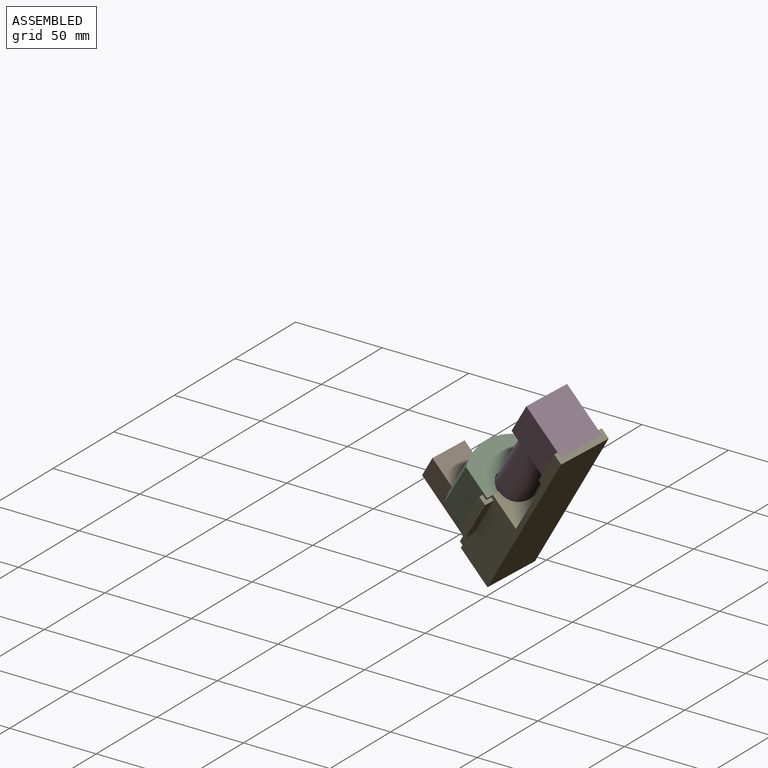
[diagram: assembled view]
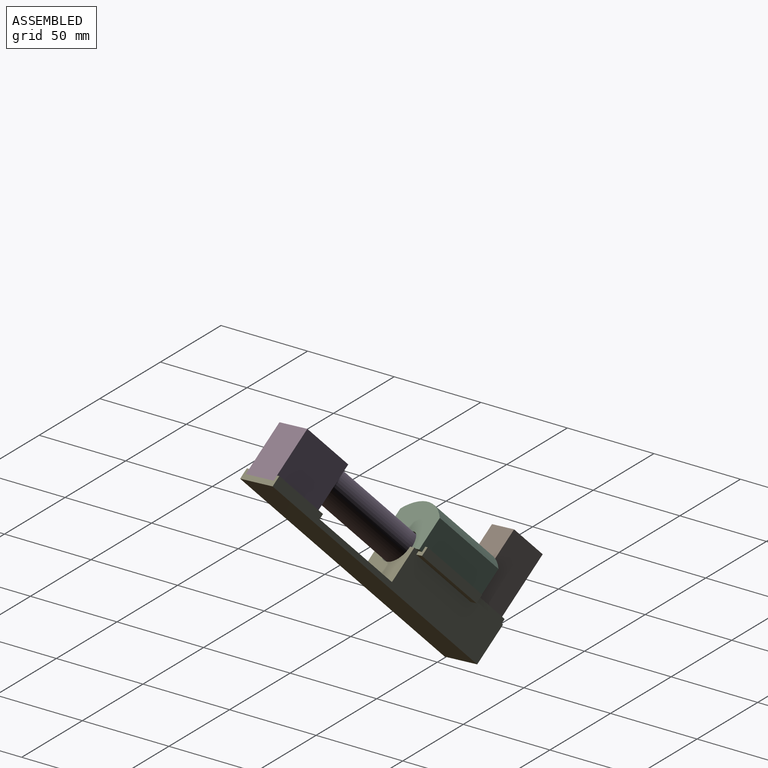
[diagram: assembled view, second angle]
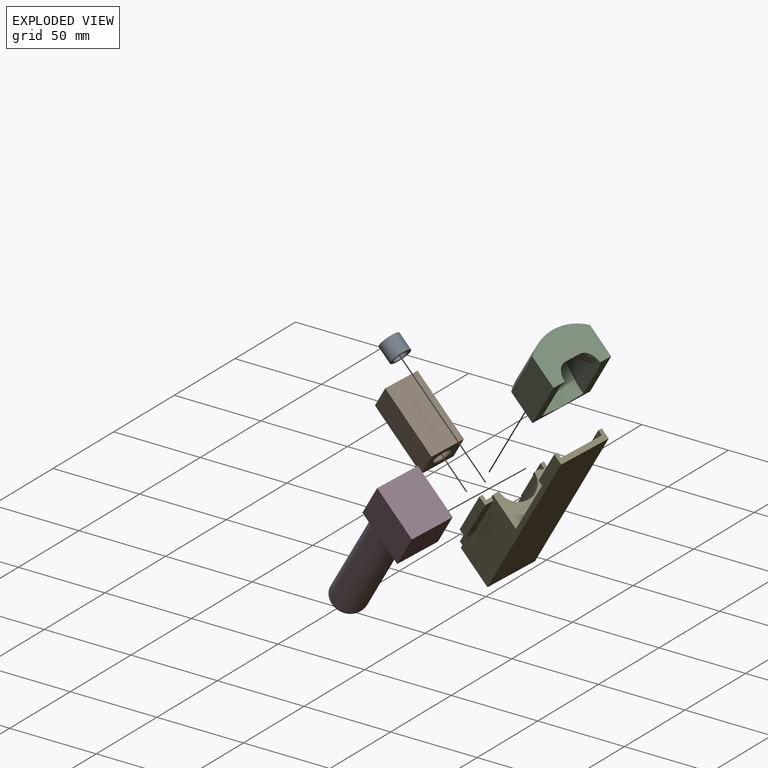
[diagram: exploded view]
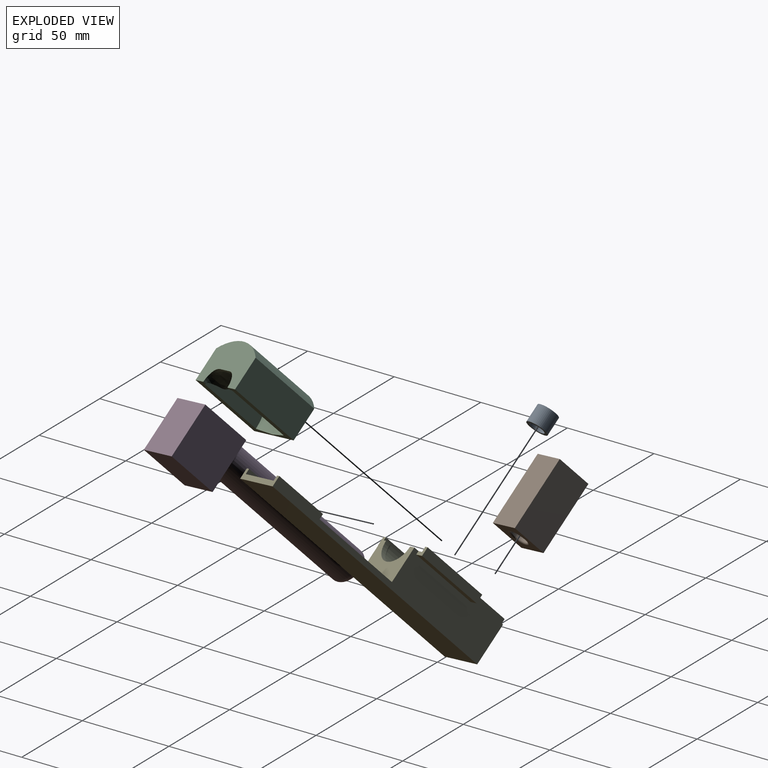
[diagram: exploded view, second angle]
ASSEMBLY  parts=5 mates=11
PART A: 6 faces, bbox 12x12x10 mm
  f0: cylinder r=6mm len=12mm, axis (0,0,-1), area 377mm2, adj f1,f2
  f1: plane 12x12mm, normal (0,0,1), area 111.3mm2, adj f0,f5
  f2: plane 12x12mm, normal (0,0,-1), area 56.4mm2, adj f0,f3
  f3: cylinder r=4.25mm len=8.5mm, axis (0,0,-1), area 213.6mm2, adj f2,f4
  f4: plane 8.5x8.5mm, normal (0,0,-1), area 55mm2, adj f3,f5
  f5: cylinder r=0.75mm len=2mm, axis (0,0,-1), area 9.4mm2, adj f1,f4
PART B: 9 faces, bbox 40x21x19 mm
  f0: plane 40x19mm, normal (0,-1,0), area 760mm2, adj f1,f3,f4,f5
  f1: plane 40x21mm, normal (0,0,-1), area 840mm2, adj f0,f2,f4,f5
  f2: plane 40x19mm, normal (0,1,0), area 760mm2, adj f1,f3,f4,f5
  f3: plane 40x21mm, normal (0,0,1), area 840mm2, adj f0,f2,f4,f5
  f4: plane 21x19mm, normal (1,0,0), area 285.9mm2, adj f0,f1,f2,f3,f7
  f5: plane 21x19mm, normal (-1,0,0), area 285.9mm2, adj f0,f1,f2,f3,f8
  f6: cylinder r=5mm len=38mm, axis (-1,0,0), area 1193.8mm2, adj f7,f8
  f7: torus R=6mm, axis (1,0,0), area 52.9mm2, adj f4,f6
  f8: torus R=6mm, axis (1,0,0), area 52.9mm2, adj f5,f6
PART C: 32 faces, bbox 43.8x25.8x47.2 mm
  f0: plane 43x34mm, normal (0,-1,0), area 484.8mm2, adj f2,f5,f6,f12,f14,f22,f23,f25
  f1: cylinder r=25mm len=43mm, axis (-1,0,0), area 1595mm2, adj f2,f6,f15,f16,f17,f18,f19,f20
  f2: plane 34x25mm, normal (-1,0,0), area 627.1mm2, adj f0,f1,f23,f24,f25,f26,f27,f29
  f3: torus R=12mm, axis (-1,0,0), area 284.4mm2, adj f4,f10,f13,f15,f28,f30
  f4: cone r=22mm half-angle=63.4deg, axis (-1,0,0), area 100.3mm2, adj f3,f5,f28,f30
  f5: torus R=8.87mm, axis (-1,0,0), area 103.6mm2, adj f0,f4,f14,f28,f30
  f6: plane 34x25mm, normal (1,0,0), area 779mm2, adj f0,f1,f29,f31
  f7: torus R=22.65mm, axis (1,0,0), area 260mm2, adj f9,f11,f17,f20,f21,f28,f30
  f8: torus R=12mm, axis (-1,0,0), area 246.4mm2, adj f10,f11,f13,f15,f16,f18,f19,f28
  f9: cone r=12mm half-angle=3.8deg, axis (1,0,0), area 301.5mm2, adj f7,f12,f17,f28,f30
  f10: cylinder r=22mm len=11.62mm, axis (-1,0,0), area 5.7mm2, adj f3,f8,f15,f28
  f11: cone r=13mm half-angle=56.3deg, axis (1,0,0), area 14.2mm2, adj f7,f8,f28,f30
  f12: torus R=11.06mm, axis (-1,0,0), area 54.9mm2, adj f0,f9,f22,f28,f30
  f13: cylinder r=22mm len=11.62mm, axis (-1,0,0), area 5.7mm2, adj f3,f8,f15,f30
  f14: cone r=12mm half-angle=80.5deg, axis (-1,0,0), area 176.1mm2, adj f0,f5
  f15: cylinder r=0.75mm len=3mm, axis (0,-1,0), area 14.1mm2, adj f1,f3,f8,f10,f13
  f16: cylinder r=0.75mm len=5.95mm, axis (0,-1,0), area 25mm2, adj f1,f8
  f17: cylinder r=0.75mm len=12.34mm, axis (0,-1,0), area 58mm2, adj f1,f7,f9
  f18: cylinder r=0.75mm len=3.55mm, axis (0,-1,0), area 15.9mm2, adj f1,f8
  f19: cylinder r=0.75mm len=3.73mm, axis (0,-1,0), area 15.3mm2, adj f1,f8
  f20: cylinder r=0.75mm len=11.75mm, axis (0,-1,0), area 53.4mm2, adj f1,f7
  f21: cylinder r=0.75mm len=11.46mm, axis (0,-1,0), area 51.2mm2, adj f1,f7
  f22: plane 22.13x11.06mm, normal (1,0,0), area 40.5mm2, adj f0,f12,f23,f24,f25,f26,f27
  f23: cylinder r=10.4mm len=6.24mm, axis (1,0,0), area 13.4mm2, adj f0,f2,f22,f26
  f24: plane 8x2mm, normal (0,-1,0), area 16mm2, adj f2,f22,f26,f27
  f25: cylinder r=10.4mm len=6.24mm, axis (1,0,0), area 13.4mm2, adj f0,f2,f22,f27
  f26: cylinder r=5.4mm len=4.32mm, axis (1,0,0), area 10mm2, adj f2,f22,f23,f24
  f27: cylinder r=5.4mm len=4.32mm, axis (1,0,0), area 10mm2, adj f2,f22,f24,f25
  f28: plane 38.02x19.23mm, normal (0,0,-1), area 396.7mm2, adj f0,f3,f4,f5,f7,f8,f9,f10
  f29: plane 43x18.33mm, normal (0,0,1), area 788.2mm2, adj f0,f1,f2,f6
  f30: plane 38.02x19.23mm, normal (0,0,1), area 396.7mm2, adj f0,f3,f4,f5,f7,f8,f9,f11
  f31: plane 43x18.33mm, normal (0,0,-1), area 788.2mm2, adj f0,f1,f2,f6
PART D: 23 faces, bbox 126.3x29.1x32.1 mm
  f0: plane 10x8mm, normal (1,0,0), area 16.9mm2, adj f14,f15,f19,f20
  f1: plane 10x8mm, normal (1,0,0), area 16.9mm2, adj f14,f17,f19,f21
  f2: plane 89x8mm, normal (0,0,1), area 712mm2, adj f6,f7,f11,f22
  f3: cylinder r=10mm len=90mm, axis (-1,0,0), area 3985.5mm2, adj f5,f6,f7,f9,f12,f19
  f4: plane 12x9mm, normal (1,0,0), area 91mm2, adj f5,f11
  f5: torus R=6mm, axis (1,0,0), area 224.9mm2, adj f3,f4,f9,f12
  f6: cylinder r=5mm len=89.8mm, axis (-1,0,0), area 414.5mm2, adj f2,f3,f8,f21
  f7: cylinder r=5mm len=89.8mm, axis (-1,0,0), area 414.5mm2, adj f2,f3,f10,f20
  f8: bspline ~4.25x4.25mm, area 10.6mm2, adj f6,f9,f11
  f9: bspline ~5.44x4.57mm, area 13.1mm2, adj f3,f5,f8,f11
  f10: bspline ~4.25x4.25mm, area 10.6mm2, adj f7,f11,f12
  f11: cylinder r=5mm len=10.39mm, axis (0,1,0), area 73mm2, adj f2,f4,f8,f9,f10,f12
  f12: bspline ~5.05x4.5mm, area 13.1mm2, adj f3,f5,f10,f11
  f13: plane 24x20mm, normal (1,0,0), area 253.8mm2, adj f15,f16,f17,f19
  f14: plane 30x24mm, normal (0,0,1), area 720mm2, adj f0,f1,f15,f17,f18,f22
  f15: plane 30x30mm, normal (0,-1,0), area 900mm2, adj f0,f13,f14,f16,f18
  f16: plane 30x24mm, normal (0,0,-1), area 720mm2, adj f13,f15,f17,f18
  f17: plane 30x30mm, normal (0,1,0), area 900mm2, adj f1,f13,f14,f16,f18
  f18: plane 30x24mm, normal (-1,0,0), area 720mm2, adj f14,f15,f16,f17
  f19: torus R=12mm, axis (1,0,0), area 149.2mm2, adj f0,f1,f3,f13,f20,f21
  f20: torus R=7mm, axis (1,0,0), area 16.7mm2, adj f0,f7,f19,f22
  f21: torus R=7mm, axis (1,0,0), area 16.7mm2, adj f1,f6,f19,f22
  f22: cylinder r=2mm len=8mm, axis (0,-1,0), area 25.1mm2, adj f2,f14,f20,f21
PART E: 48 faces, bbox 38x150x26 mm
  f0: plane 4.9x2mm, normal (0,-1,0), area 6.7mm2, adj f2,f33,f44
  f1: plane 7.21x1mm, normal (0,-1,0), area 4.9mm2, adj f31,f44
  f2: plane 65x34mm, normal (0,0,1), area 747.7mm2, adj f0,f4,f5,f6,f7,f11,f12,f13
  f3: plane 30x24mm, normal (0,0,1), area 720mm2, adj f25,f27,f28,f29
  f4: plane 28x20mm, normal (0,-1,0), area 390.1mm2, adj f2,f7,f17,f23,f24
  f5: plane 5x5mm, normal (0,-1,0), area 16mm2, adj f2,f13,f14,f15,f16,f17
  f6: plane 5x5mm, normal (0,1,0), area 16mm2, adj f2,f13,f14,f15,f16,f17
  f7: plane 150x23mm, normal (1,0,0), area 1766mm2, adj f2,f4,f8,f18,f19,f20,f22,f24
  f8: plane 40x5mm, normal (0,0,-1), area 200mm2, adj f7,f9,f19,f20
  f9: plane 40x5mm, normal (1,0,0), area 200mm2, adj f8,f10,f19,f20
  f10: plane 40x2mm, normal (0,0,1), area 80mm2, adj f9,f11,f19,f20
  f11: plane 40x3mm, normal (-1,0,0), area 120mm2, adj f2,f10,f19,f20
  f12: cylinder r=12mm len=33.04mm, axis (0,1,0), area 1245.6mm2, adj f2,f43,f44
  f13: plane 40x3mm, normal (1,0,0), area 120mm2, adj f2,f5,f6,f14
  f14: plane 40x2mm, normal (0,0,1), area 80mm2, adj f5,f6,f13,f15
  f15: plane 40x5mm, normal (-1,0,0), area 200mm2, adj f5,f6,f14,f16
  f16: plane 40x5mm, normal (0,0,-1), area 200mm2, adj f5,f6,f15,f17
  f17: plane 150x23mm, normal (-1,0,0), area 1766mm2, adj f2,f4,f5,f6,f16,f18,f22,f24
  f18: plane 150x28mm, normal (0,0,-1), area 4200mm2, adj f7,f17,f22,f25
  f19: plane 5x5mm, normal (0,-1,0), area 16mm2, adj f2,f7,f8,f9,f10,f11
  f20: plane 5x5mm, normal (0,1,0), area 16mm2, adj f2,f7,f8,f9,f10,f11
  f21: plane 4.9x2mm, normal (0,-1,0), area 6.7mm2, adj f2,f34,f44
  f22: plane 28x26mm, normal (0,1,0), area 662mm2, adj f2,f7,f17,f18,f35,f37,f38,f39
  f23: cylinder r=10.4mm len=20.8mm, axis (0,1,0), area 98mm2, adj f2,f4,f43
  f24: plane 53x28mm, normal (0,0,1), area 1484mm2, adj f4,f7,f17,f26
  f25: plane 28x6mm, normal (0,-1,0), area 96mm2, adj f3,f7,f17,f18,f27,f29,f30
  f26: plane 28x3mm, normal (0,1,0), area 84mm2, adj f7,f17,f24,f30
  f27: plane 30x3mm, normal (1,0,0), area 90mm2, adj f3,f25,f28,f30
  f28: plane 24x3mm, normal (0,-1,0), area 72mm2, adj f3,f27,f29,f30
  f29: plane 30x3mm, normal (-1,0,0), area 90mm2, adj f3,f25,f28,f30
  f30: plane 32x28mm, normal (0,0,1), area 176mm2, adj f7,f17,f25,f26,f27,f28,f29
  f31: plane 16.97x8.01mm, normal (0,-0.26,0.96), area 140.6mm2, adj f1,f44,f45,f46,f47
  f32: plane 10x0.15mm, normal (0,-0.96,-0.26), area 1.5mm2, adj f2,f33,f34,f46
  f33: plane 17.66x4.96mm, normal (1,0,0), area 45.1mm2, adj f0,f2,f32,f44,f47
  f34: plane 17.66x4.96mm, normal (-1,0,0), area 45.1mm2, adj f2,f21,f32,f44,f45
  f35: plane 21x3mm, normal (-1,0,0), area 63mm2, adj f2,f22,f36,f38
  f36: plane 3x3mm, normal (0,-1,0), area 9mm2, adj f2,f35,f37,f38
  f37: plane 21x3mm, normal (1,0,0), area 63mm2, adj f2,f22,f36,f38
  f38: plane 21x3mm, normal (0,0,1), area 63mm2, adj f22,f35,f36,f37
  f39: plane 21x3mm, normal (1,0,0), area 63mm2, adj f2,f22,f41,f42
  f40: plane 21x3mm, normal (-1,0,0), area 63mm2, adj f2,f22,f41,f42
  f41: plane 3x3mm, normal (0,-1,0), area 9mm2, adj f2,f39,f40,f42
  f42: plane 21x3mm, normal (0,0,1), area 63mm2, adj f22,f39,f40,f41
  f43: torus R=10mm, axis (0,-1,0), area 98.4mm2, adj f2,f12,f23
  f44: torus R=7mm, axis (0,1,0), area 250.3mm2, adj f0,f1,f2,f12,f21,f31,f33,f34
  f45: cylinder r=1mm len=18.19mm, axis (0,-0.96,-0.26), area 28.5mm2, adj f31,f34,f44,f46
  f46: cylinder r=1mm len=10mm, axis (1,0,0), area 14.6mm2, adj f31,f32,f45,f47
  f47: cylinder r=1mm len=18.19mm, axis (0,0.96,0.26), area 28.5mm2, adj f31,f33,f44,f46
PLACE A rot(axis=(0.36,-0.31,-0.88),123.1deg) t=(-0.03,-44.27,0.83)mm
PLACE B rot(axis=(0.91,0.17,-0.38),115.8deg) t=(-35.56,-43.31,8.73)mm
PLACE C rot(axis=(-0.17,0.67,0.72),127.2deg) t=(20.83,-55.69,14.91)mm
PLACE D rot(axis=(-0.43,-0.03,0.9),155.9deg) t=(53.35,-78.61,57.11)mm
PLACE E rot(axis=(-0.43,-0.5,0.75),78.9deg) t=(-1.6,-39.88,-14.2)mm fixed
MATE planar B.f4 <-> E.f2  axis (0.75,-0.12,-0.65) through (-17.19,-39.83,-32.39)mm
MATE planar C.f6 <-> E.f36  axis (-0.56,0.4,-0.73) through (3.68,-24,-11.01)mm
MATE planar D.f17 <-> E.f27  axis (-0.34,-0.91,-0.23) through (69.82,-102,72.94)mm
MATE planar B.f3 <-> E.f37  axis (-0.34,-0.91,-0.23) through (-26.38,-41.57,-11.83)mm
MATE planar D.f13 <-> E.f28  axis (-0.56,0.4,-0.73) through (64.18,-80.35,47.82)mm
MATE slider C.f15 <-> A.f0  axis (0.75,-0.12,-0.65) through (-13.16,-42,11.43)mm
MATE planar D.f16 <-> E.f3  axis (0.75,-0.12,-0.65) through (76.83,-86.95,55.1)mm
MATE planar B.f2 <-> C.f6  axis (0.56,-0.4,0.73) through (-17.23,-37.07,-2)mm
MATE planar E.f2 <-> C.f0  axis (-0.75,0.12,0.65) through (2.3,-42.62,-9.14)mm
MATE planar C.f29 <-> E.f11  axis (0.34,0.91,0.23) through (15.73,-32.5,4.63)mm
MATE planar A.f0 <-> D.f2  axis (0.75,-0.12,-0.65) through (-0.34,-44.05,0.43)mm
